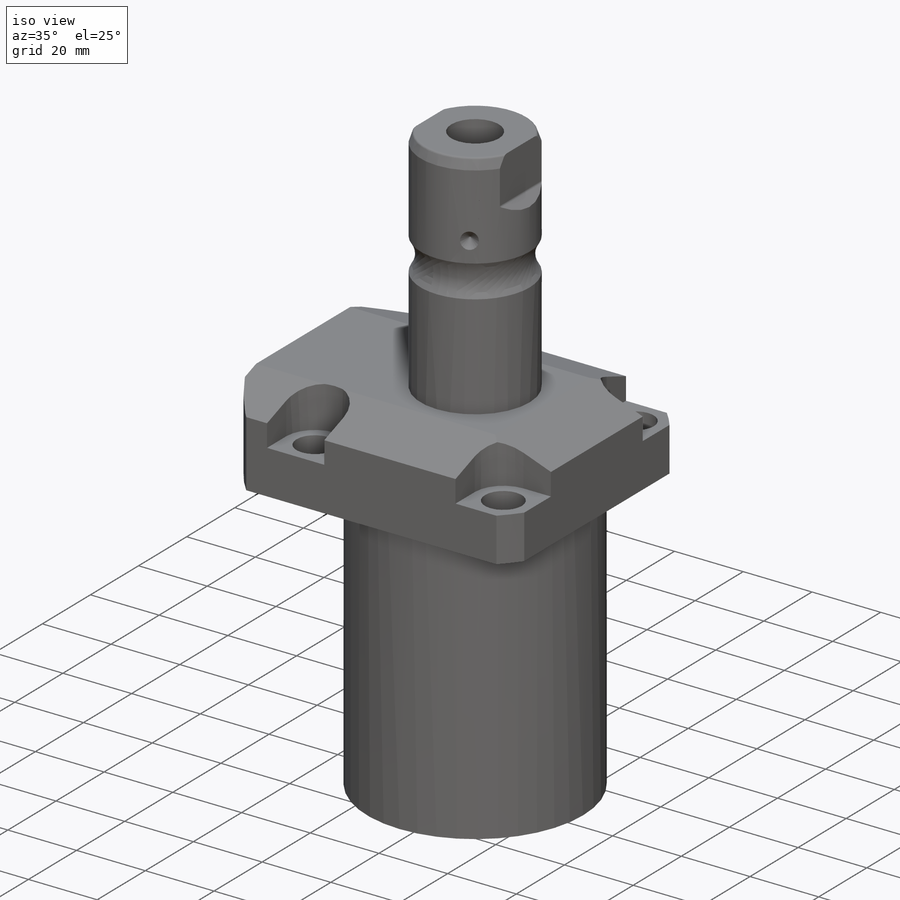
[diagram: iso view]
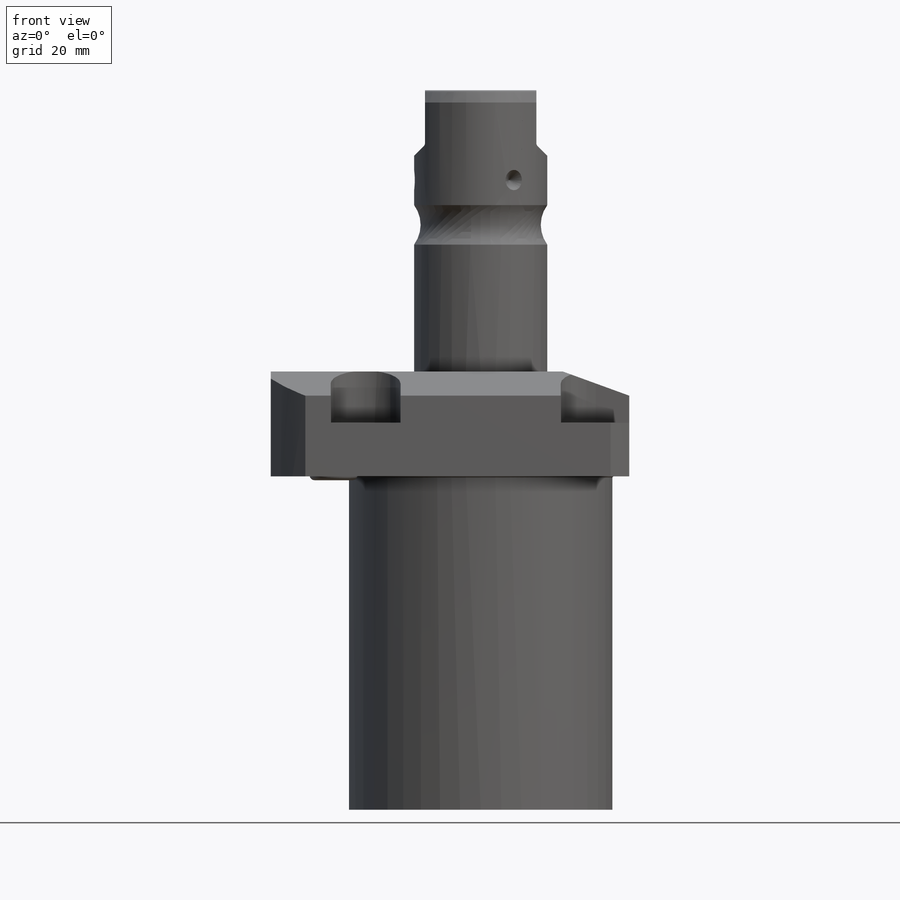
[diagram: front view]
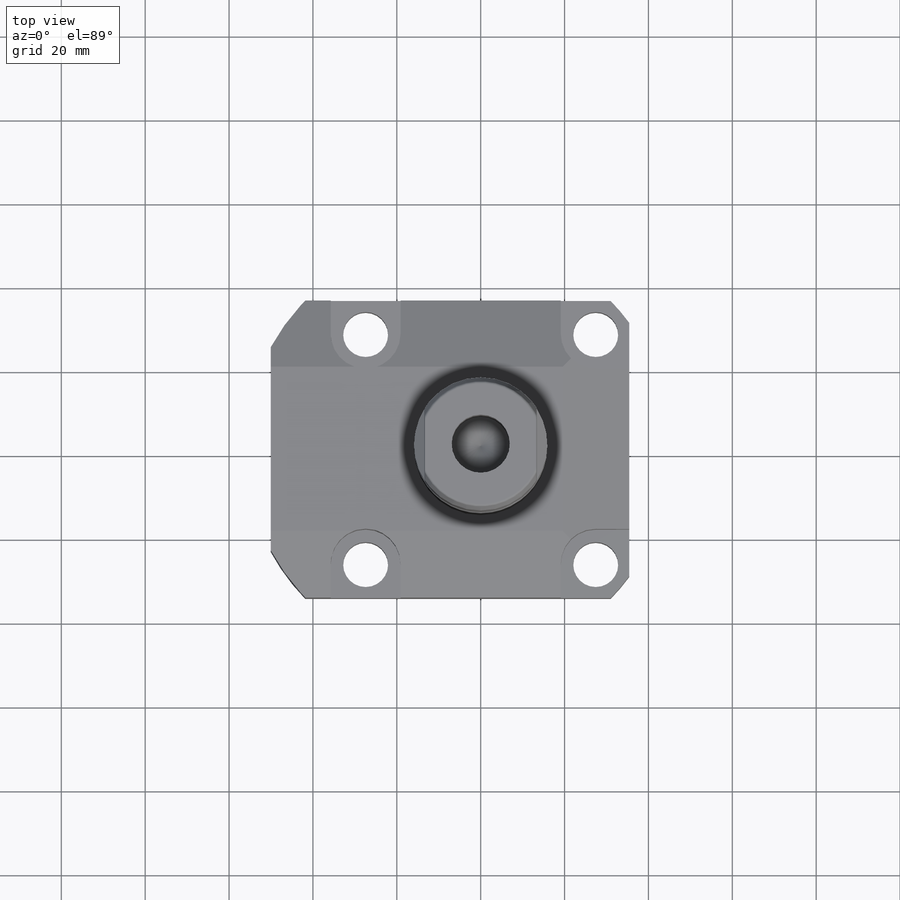
[diagram: top view]
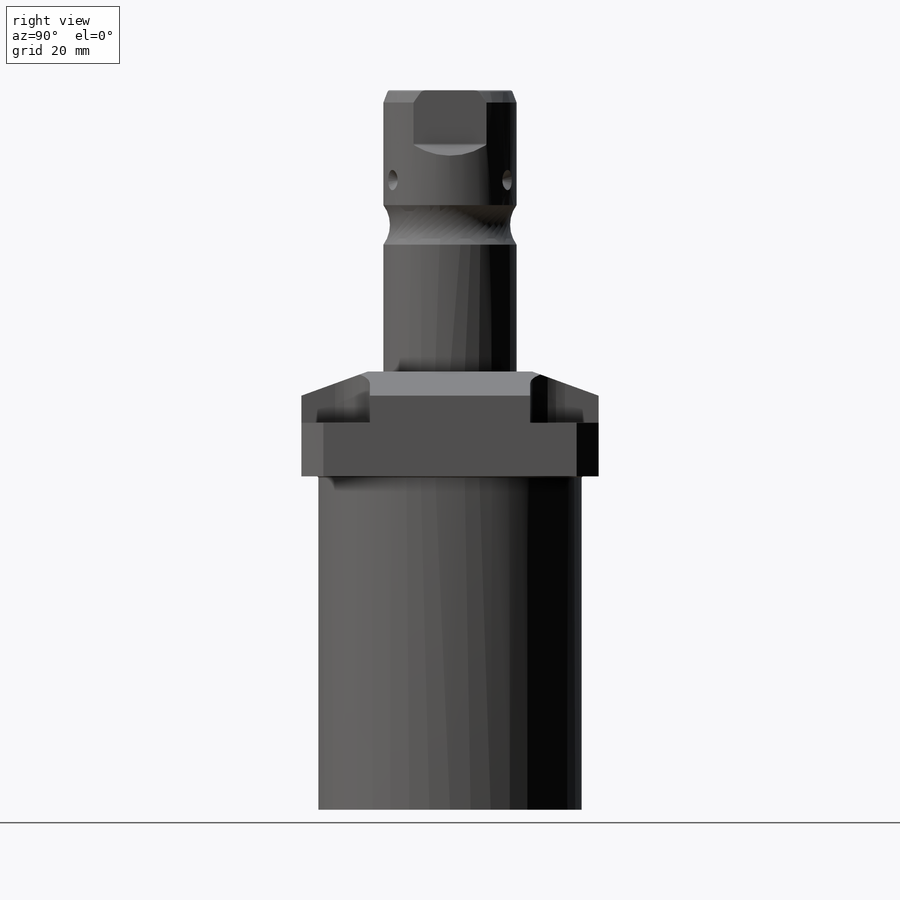
[diagram: right view]
SOLIDWORKS PART (.sldprt)
format: sldprt  version: not decoded by parser v0  size: 744,960 bytes
history: native  units: mm
features: sketch x16, cut_extrude x5, cut_revolve x4, mirror x4, fillet x2, plane x2, revolve x2, hole x2, material x1, extrude x1, chamfer x1, pattern_circular x1 (+11 scaffold rows collapsed)
feature tree (52):
  scaffold x11  (default folders/planes/origin — collapsed)
  material  "Alloy Steel"
  sketch  "Sketch1"  dims[c1.D1=35.433mm c1.D2=85.496mm c1.D3=70.866mm c2.D1=35.433mm]
  extrude  "Extrude1"  Depth=104.521mm
  sketch  "Sketch2"  dims[D1=101.6mm D2=5.4102mm]
  cut_extrude  "Cut-Extrude1"  Depth=0mm
  sketch  "Sketch3"  dims[D1=62.789mm D2=153.1874mm D3=79.502mm]
  cut_revolve  "Cut-Revolve1"  Angle=360deg
  fillet  "Fillet1"  Radius=0.381mm
  sketch  "Sketch4"  dims[c1.D2=8.3312mm c1.D1=27.432mm c1.D3=27.432mm c1.D4=54.864mm c2.D3=27.432mm]
  cut_extrude  "Cut-Extrude2"  Depth=12.243mm
  sketch  "Sketch5"  dims[c1.D1=28.575mm c1.D2=15.875mm c2.D2=20.0deg c2.D1=15.875mm]
  cut_extrude  "Cut-Extrude9"  [1 undecoded]
  mirror  "Mirror1"
  sketch  "Sketch9"  dims[c1.D1=15.875mm c1.D2=15.875mm c2.D2=20.0deg]
  cut_extrude  "Cut-Extrude7"  Depth=0mm
  plane  "Plane14"  Offset=35.0774mm
  sketch  "Sketch20"  dims[D1=14.5288mm D2=11.4046mm D3=1.4478mm D4=6.5024mm D5=1.016mm D6=2.4892mm D7=10.9728mm]
  cut_revolve  "Cut-Revolve4"  Angle=360deg
  mirror  "Mirror10"
  sketch  "Sketch10"  dims[c1.D1=2.3622mm c1.D2=0.2667mm c1.D3=9.0424mm c2.D2=0.2667mm]
  revolve  "Revolve4"  Angle=360deg
  mirror  "Mirror12"
  sketch  "Sketch15"  dims[c1.D2=1.016mm c1.D4=7.9248mm c1.D6=7.9248mm c1.D1=104.7496mm c1.D3=31.75mm c1.D5=32.106mm c2.D6=28.6512mm c2.D1=~14.860835mm c3.D1=~0.102126deg c4.D1=171.577mm c4.D2=~1.436841mm c5.D2=20.0deg c5.D7=~2.921006mm]
  revolve  "Revolve3"  Angle=360deg
  hole  "Hole1"  Diameter=10.7188mm Depth=12.776mm
  sketch  "Sketch18"
  sketch  "Sketch17"  dims[Diameter=10.7188mm Depth=12.776mm]
  chamfer  "Chamfer1"  Distance=0.635mm Angle=45deg
  plane  "Plane15"  Offset=13.0048mm
  sketch  "Sketch21"  dims[c1.D1=12.9794mm c1.D2=0.254mm c1.D3=22.098mm c1.D4=~0.804464mm c2.D4=45.0deg c2.D5=0.7112mm c2.D6=11.8872mm c2.D7=4.0894mm c3.D7=90.0deg c4.D7=14.1732mm c4.D1=12.9794mm]
  cut_revolve  "Cut-Revolve5"  Angle=360deg
  mirror  "Mirror13"
  fillet  "Fillet2"  Radius=0.635mm
  sketch  "Sketch26"  dims[c1.D1=~3.542685mm c2.D1=45.0deg c2.D2=4.826mm c2.D3=10.688mm]
  cut_revolve  "Cut-Revolve7"  Angle=360deg
  pattern_circular  "CirPattern1"  Count=3 Angle=360deg
  hole  "Hole2"  Diameter=13.8684mm Depth=25.4mm
  sketch  "Sketch28"
  sketch  "Sketch27"  dims[c1.D1=~97.659253deg c1.D2=~82.982399deg c1.Diameter=13.8684mm c2.D2=100.0mm c2.D3=~82.982399deg c2.D4=90.0deg c3.D3=~97.716715deg c3.Depth=25.4mm c3.Drill Angle=118.0deg]
  sketch  "Sketch29"  dims[c1.D2=~0.762002mm c1.D1=~10.741558mm c2.D1=45.0deg c2.D3=26.568mm c2.D4=12.7mm]
  cut_extrude  "Cut-Extrude10"  [1 undecoded]
decode coverage: 30 of 38 modeling features carry decoded parameters
note: ~ marks probable driven/reference dimensions
note: 2 parameter values undecoded
note: suppression state not decoded; provenance and decode notes live in map.json
